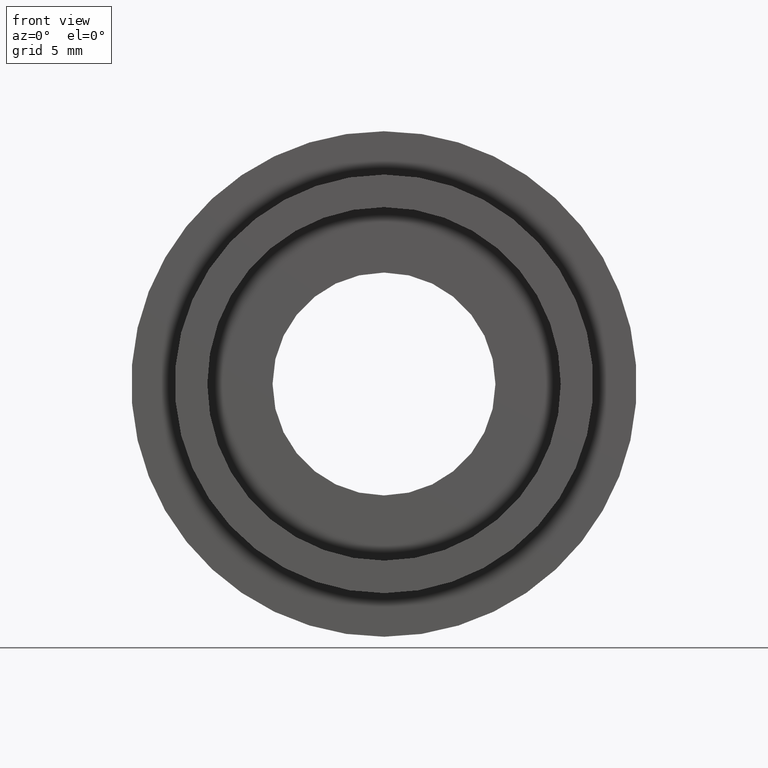
[diagram: clean part render]
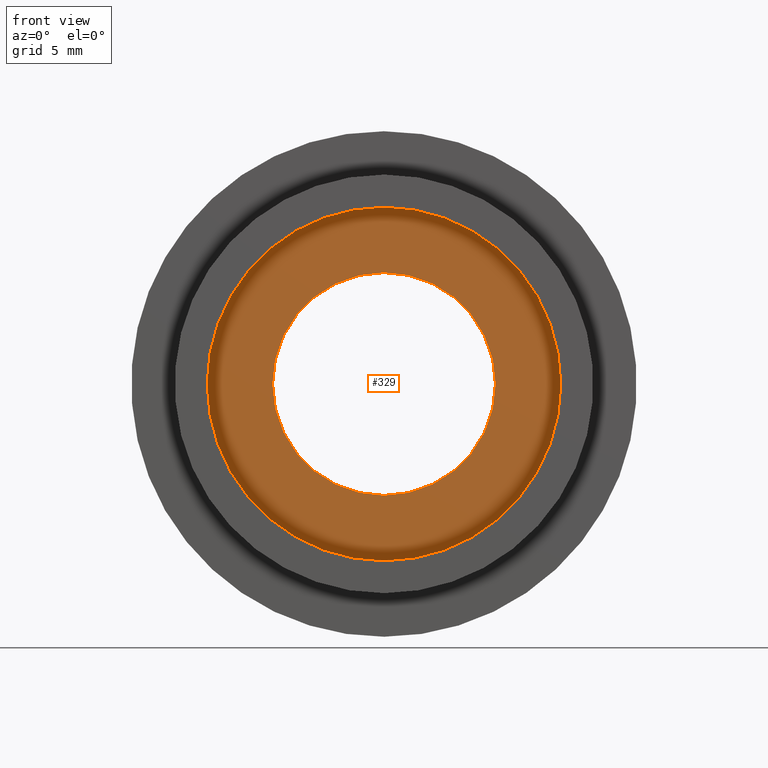
[diagram: same view with one face highlighted and labeled with its STEP entity id]
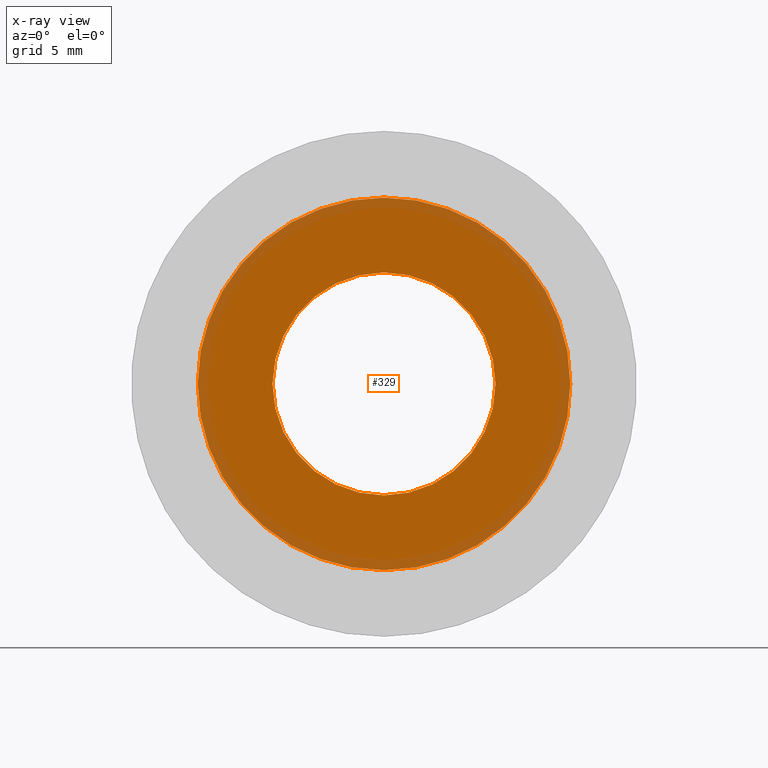
[diagram: x-ray of the same camera — body ghosted, the highlighted face saturated]
A machine part, front view. The second image highlights one B-rep face of the part: STEP entity #329.
The next image is the same camera in x-ray: the body ghosted, the highlighted face saturated — about 16% of this face is hidden behind the body in this view.
In plain terms, the highlighted planar face has unit normal (-0, 1, 0).
Its self-contained STEP definition (entity closure, byte-faithful):
#15 = ORIENTED_EDGE ( 'NONE', *, *, #621, .F. ) ;
#20 = DIRECTION ( 'NONE',  ( 0.0000000000000000000, 0.0000000000000000000, 1.000000000000000000 ) ) ;
#34 = AXIS2_PLACEMENT_3D ( 'NONE', #42, #37, #20 ) ;
#37 = DIRECTION ( 'NONE',  ( -0.0000000000000000000, 1.000000000000000000, -0.0000000000000000000 ) ) ;
#42 = CARTESIAN_POINT ( 'NONE',  ( 0.0000000000000000000, 4.999999999999999100, 0.0000000000000000000 ) ) ;
#52 = DIRECTION ( 'NONE',  ( 0.0000000000000000000, 0.0000000000000000000, 1.000000000000000000 ) ) ;
#72 = AXIS2_PLACEMENT_3D ( 'NONE', #174, #236, #124 ) ;
#85 = CARTESIAN_POINT ( 'NONE',  ( 0.0000000000000000000, 4.999999999999999100, 7.000000000000001800 ) ) ;
#99 = CARTESIAN_POINT ( 'NONE',  ( 0.0000000000000000000, 5.000000000000000900, 0.0000000000000000000 ) ) ;
#106 = EDGE_LOOP ( 'NONE', ( #422, #278 ) ) ;
#107 = CIRCLE ( 'NONE', #561, 11.70000000000000100 ) ;
#124 = DIRECTION ( 'NONE',  ( 0.0000000000000000000, 0.0000000000000000000, 1.000000000000000000 ) ) ;
#127 = PLANE ( 'NONE',  #72 ) ;
#135 = VERTEX_POINT ( 'NONE', #85 ) ;
#136 = VERTEX_POINT ( 'NONE', #315 ) ;
#140 = DIRECTION ( 'NONE',  ( -0.0000000000000000000, 1.000000000000000000, -0.0000000000000000000 ) ) ;
#174 = CARTESIAN_POINT ( 'NONE',  ( 11.70000000000000100, 4.999999999999999100, 0.0000000000000000000 ) ) ;
#182 = CIRCLE ( 'NONE', #34, 7.000000000000001800 ) ;
#209 = ORIENTED_EDGE ( 'NONE', *, *, #477, .F. ) ;
#219 = DIRECTION ( 'NONE',  ( -0.0000000000000000000, 1.000000000000000000, -0.0000000000000000000 ) ) ;
#221 = CARTESIAN_POINT ( 'NONE',  ( 8.572527594031474200E-016, 4.999999999999999100, -7.000000000000001800 ) ) ;
#236 = DIRECTION ( 'NONE',  ( -0.0000000000000000000, 1.000000000000000000, 0.0000000000000000000 ) ) ;
#277 = EDGE_CURVE ( 'NONE', #135, #397, #471, .T. ) ;
#278 = ORIENTED_EDGE ( 'NONE', *, *, #362, .T. ) ;
#315 = CARTESIAN_POINT ( 'NONE',  ( 0.0000000000000000000, 5.000000000000000900, 11.70000000000000100 ) ) ;
#320 = DIRECTION ( 'NONE',  ( 0.0000000000000000000, 0.0000000000000000000, 1.000000000000000000 ) ) ;
#329 = ADVANCED_FACE ( 'NONE', ( #383, #481 ), #127, .F. ) ;
#349 = DIRECTION ( 'NONE',  ( -0.0000000000000000000, 1.000000000000000000, -0.0000000000000000000 ) ) ;
#353 = CARTESIAN_POINT ( 'NONE',  ( 0.0000000000000000000, 4.999999999999999100, 0.0000000000000000000 ) ) ;
#362 = EDGE_CURVE ( 'NONE', #397, #135, #182, .T. ) ;
#383 = FACE_OUTER_BOUND ( 'NONE', #450, .T. ) ;
#397 = VERTEX_POINT ( 'NONE', #221 ) ;
#422 = ORIENTED_EDGE ( 'NONE', *, *, #277, .T. ) ;
#428 = AXIS2_PLACEMENT_3D ( 'NONE', #99, #219, #578 ) ;
#433 = VERTEX_POINT ( 'NONE', #600 ) ;
#450 = EDGE_LOOP ( 'NONE', ( #15, #209 ) ) ;
#471 = CIRCLE ( 'NONE', #574, 7.000000000000001800 ) ;
#477 = EDGE_CURVE ( 'NONE', #433, #136, #107, .T. ) ;
#481 = FACE_BOUND ( 'NONE', #106, .T. ) ;
#513 = CIRCLE ( 'NONE', #428, 11.70000000000000100 ) ;
#534 = CARTESIAN_POINT ( 'NONE',  ( 0.0000000000000000000, 5.000000000000000900, 0.0000000000000000000 ) ) ;
#561 = AXIS2_PLACEMENT_3D ( 'NONE', #534, #140, #52 ) ;
#574 = AXIS2_PLACEMENT_3D ( 'NONE', #353, #349, #320 ) ;
#578 = DIRECTION ( 'NONE',  ( 0.0000000000000000000, 0.0000000000000000000, 1.000000000000000000 ) ) ;
#600 = CARTESIAN_POINT ( 'NONE',  ( 1.432836755002403500E-015, 5.000000000000000900, -11.70000000000000100 ) ) ;
#621 = EDGE_CURVE ( 'NONE', #136, #433, #513, .T. ) ;